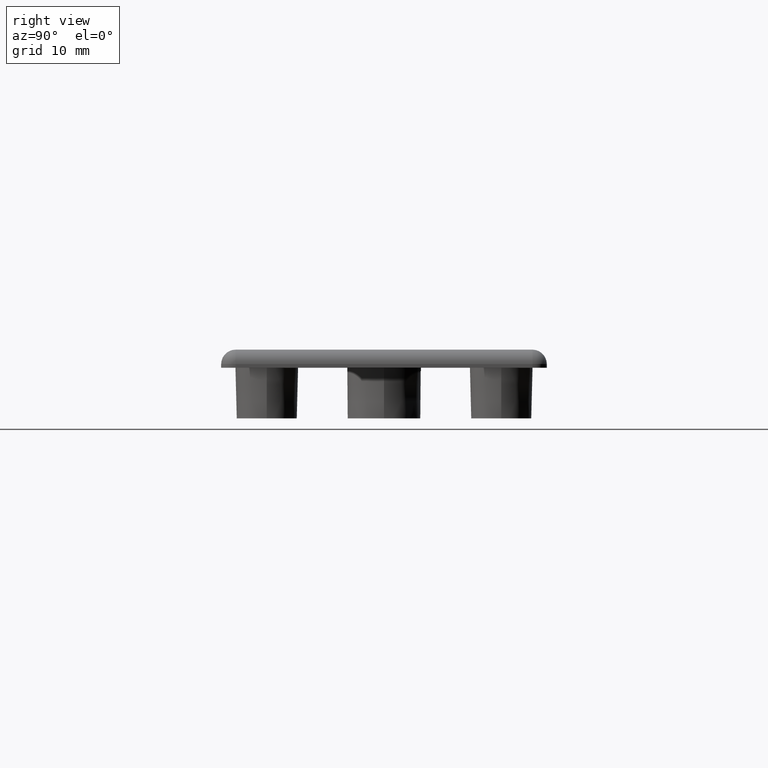
[diagram: clean part render]
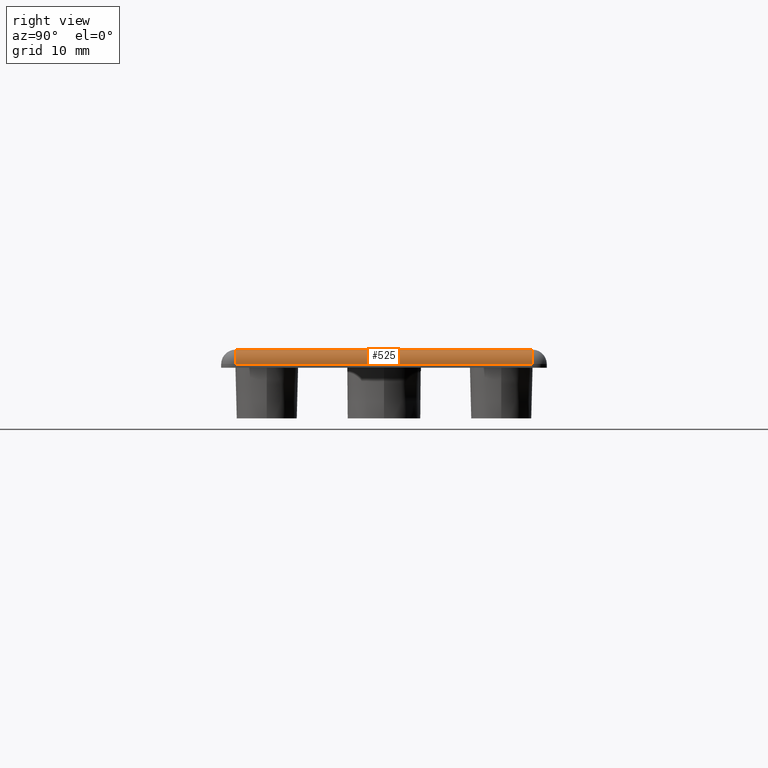
[diagram: same view with one face highlighted and labeled with its STEP entity id]
A machine part, right view. The second image highlights one B-rep face of the part: STEP entity #525.
In plain terms, the highlighted cylindrical surface (edge-blend (fillet) strip) has radius 2 mm, axis along (-0, 1, 0).
Its self-contained STEP definition (entity closure, byte-faithful):
#23=CYLINDRICAL_SURFACE('',#606,2.);
#34=LINE('',#862,#54);
#42=LINE('',#933,#62);
#54=VECTOR('',#678,41.);
#62=VECTOR('',#776,41.);
#141=FACE_OUTER_BOUND('',#207,.T.);
#207=EDGE_LOOP('',(#445,#446,#447,#448));
#247=CIRCLE('',#594,2.);
#253=CIRCLE('',#604,2.);
#278=VERTEX_POINT('',#856);
#280=VERTEX_POINT('',#860);
#295=VERTEX_POINT('',#910);
#298=VERTEX_POINT('',#926);
#324=EDGE_CURVE('',#278,#280,#34,.T.);
#340=EDGE_CURVE('',#295,#278,#247,.F.);
#350=EDGE_CURVE('',#280,#298,#253,.F.);
#353=EDGE_CURVE('',#298,#295,#42,.T.);
#445=ORIENTED_EDGE('',*,*,#340,.T.);
#446=ORIENTED_EDGE('',*,*,#324,.T.);
#447=ORIENTED_EDGE('',*,*,#350,.T.);
#448=ORIENTED_EDGE('',*,*,#353,.T.);
#525=ADVANCED_FACE('',(#141),#23,.T.);
#594=AXIS2_PLACEMENT_3D('',#911,#744,#745);
#604=AXIS2_PLACEMENT_3D('',#928,#768,#769);
#606=AXIS2_PLACEMENT_3D('',#932,#774,#775);
#678=DIRECTION('',(1.97372982155583E-16,-1.,0.));
#744=DIRECTION('center_axis',(0.,1.,4.44089209850063E-15));
#745=DIRECTION('ref_axis',(1.,0.,0.));
#768=DIRECTION('center_axis',(0.,-1.,0.));
#769=DIRECTION('ref_axis',(0.,0.,1.));
#774=DIRECTION('center_axis',(-1.97372982155583E-16,1.,0.));
#775=DIRECTION('ref_axis',(0.707106781186549,0.,0.707106781186546));
#776=DIRECTION('',(-1.97372982155583E-16,1.,0.));
#856=CARTESIAN_POINT('',(43.,20.5,2.5));
#860=CARTESIAN_POINT('',(43.,-20.5,2.5));
#862=CARTESIAN_POINT('',(43.,-11.25,2.5));
#910=CARTESIAN_POINT('',(45.,20.5,0.5));
#911=CARTESIAN_POINT('Origin',(43.,20.5,0.5));
#926=CARTESIAN_POINT('',(45.,-20.5,0.5));
#928=CARTESIAN_POINT('Origin',(43.,-20.5,0.5));
#932=CARTESIAN_POINT('Origin',(43.,-11.25,0.5));
#933=CARTESIAN_POINT('',(45.,-11.25,0.5));